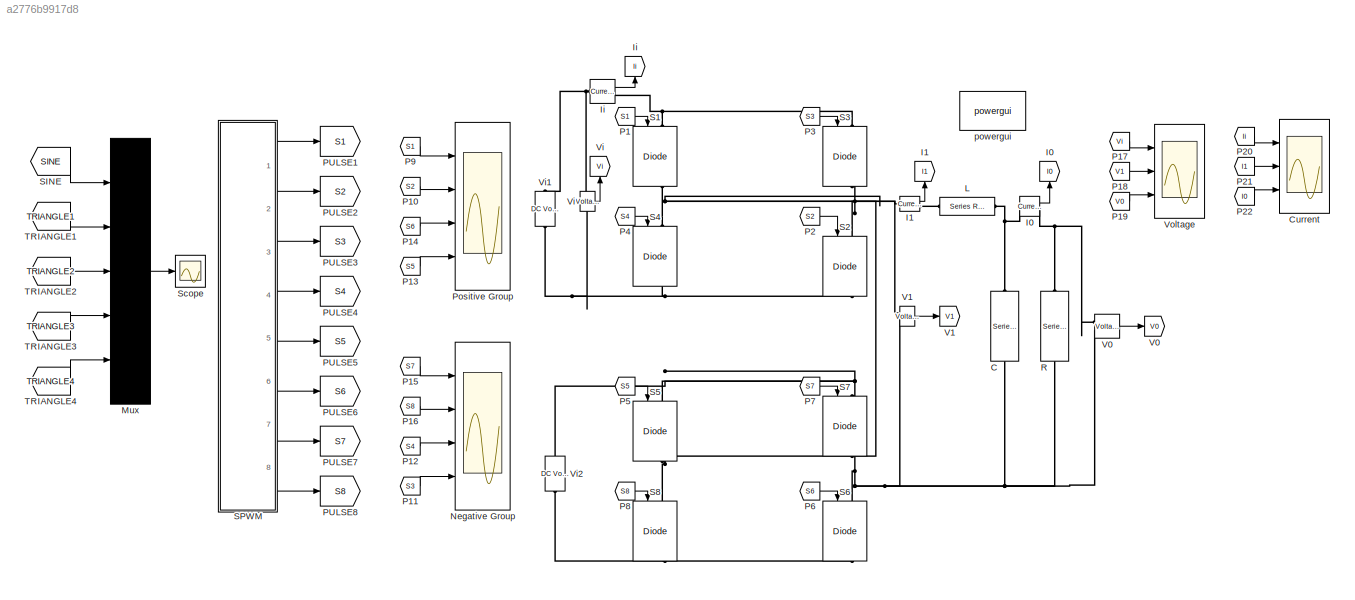
MODEL slx_a2776b9917d8
KIND model
BLOCK [Reference] C  REF=powerlib/Elements/Series RLC Branch
  BranchType = C
  Capacitance = 5.5e-6
  Inductance = 5e-3
  InitialCurrent = 0
  InitialVoltage = 0
  LConnTagsString = __new0
  Measurements = None
  Ports = [0, 0, 0, 0, 0, 1, 1]
  RConnTagsString = __new0
  Resistance = 20
  SetiL0 = off
  Setx0 = off
  SourceBlock = powerlib/Elements/Series RLC Branch
  SourceType = Series RLC Branch
BLOCK [Scope] Current
  DataFormat = StructureWithTime
  Floating = off
  LimitDataPoints = off
  NumInputPorts = 3
  Ports = [3]
  SaveName = current
  SaveToWorkspace = on
  ShowLegends = off
  TimeRange = 0.1
  YMax = 4~4~4
  YMin = -4~-4~-4
  ZoomMode = xonly
BLOCK [Reference] I0  REF=powerlib/Measurements/Current Measurement
  OutputType = Complex
  PSBequivalent = 0
  PhasorSimulation = off
  Ports = [0, 1, 0, 0, 0, 1, 1]
  SourceBlock = powerlib/Measurements/Current Measurement
  SourceType = Current Measurement
  UserDataPersistent = on
BLOCK [Goto] I0 
  GotoTag = I0
  TagVisibility = global
BLOCK [Reference] I1  REF=powerlib/Measurements/Current Measurement
  OutputType = Complex
  PSBequivalent = 0
  PhasorSimulation = off
  Ports = [0, 1, 0, 0, 0, 1, 1]
  SourceBlock = powerlib/Measurements/Current Measurement
  SourceType = Current Measurement
  UserDataPersistent = on
BLOCK [Goto] I1 
  GotoTag = I1
  TagVisibility = global
BLOCK [Reference] Ii  REF=powerlib/Measurements/Current Measurement
  OutputType = Complex
  PSBequivalent = 0
  PhasorSimulation = off
  Ports = [0, 1, 0, 0, 0, 1, 1]
  SourceBlock = powerlib/Measurements/Current Measurement
  SourceType = Current Measurement
  UserDataPersistent = on
BLOCK [Goto] Ii 
  GotoTag = Ii
  TagVisibility = global
BLOCK [Reference] L  REF=powerlib/Elements/Series RLC Branch
  BranchType = L
  Capacitance = 1e-6
  Inductance = 35e-3
  InitialCurrent = 0
  InitialVoltage = 0
  LConnTagsString = __new0
  Measurements = None
  Ports = [0, 0, 0, 0, 0, 1, 1]
  RConnTagsString = __new0
  Resistance = 20
  SetiL0 = off
  Setx0 = off
  SourceBlock = powerlib/Elements/Series RLC Branch
  SourceType = Series RLC Branch
BLOCK [Mux] Mux
  DisplayOption = bar
  Inputs = 5
  Ports = [5, 1]
BLOCK [Scope] Negative Group
  DataFormat = StructureWithTime
  Floating = off
  LimitDataPoints = off
  NumInputPorts = 4
  Ports = [4]
  SaveName = negative
  SaveToWorkspace = on
  ShowLegends = off
  YMax = 5~5~5~5
  YMin = -5~-5~-5~-5
  ZoomMode = xonly
BLOCK [From] P1
  GotoTag = S1
  TagVisibility = global
BLOCK [From] P10
  GotoTag = S2
  TagVisibility = global
BLOCK [From] P11
  GotoTag = S3
  TagVisibility = global
BLOCK [From] P12
  GotoTag = S4
  TagVisibility = global
BLOCK [From] P13
  GotoTag = S5
  TagVisibility = global
BLOCK [From] P14
  GotoTag = S6
  TagVisibility = global
BLOCK [From] P15
  GotoTag = S7
  TagVisibility = global
BLOCK [From] P16
  GotoTag = S8
  TagVisibility = global
BLOCK [From] P17
  GotoTag = Vi
  TagVisibility = global
BLOCK [From] P18
  GotoTag = V1
  TagVisibility = global
BLOCK [From] P19
  GotoTag = V0
  TagVisibility = global
BLOCK [From] P2
  GotoTag = S2
  TagVisibility = global
BLOCK [From] P20
  GotoTag = Ii
  TagVisibility = global
BLOCK [From] P21
  GotoTag = I1
  TagVisibility = global
BLOCK [From] P22
  GotoTag = I0
  TagVisibility = global
BLOCK [From] P3
  GotoTag = S3
  TagVisibility = global
BLOCK [From] P4
  GotoTag = S4
  TagVisibility = global
BLOCK [From] P5
  GotoTag = S5
  TagVisibility = global
BLOCK [From] P6
  GotoTag = S6
  TagVisibility = global
BLOCK [From] P7
  GotoTag = S7
  TagVisibility = global
BLOCK [From] P8
  GotoTag = S8
  TagVisibility = global
BLOCK [From] P9
  GotoTag = S1
  TagVisibility = global
BLOCK [Goto] PULSE1
  GotoTag = S1
  TagVisibility = global
BLOCK [Goto] PULSE2
  GotoTag = S2
  TagVisibility = global
BLOCK [Goto] PULSE3
  GotoTag = S3
  TagVisibility = global
BLOCK [Goto] PULSE4
  GotoTag = S4
  TagVisibility = global
BLOCK [Goto] PULSE5
  GotoTag = S5
  TagVisibility = global
BLOCK [Goto] PULSE6
  GotoTag = S6
  TagVisibility = global
BLOCK [Goto] PULSE7
  GotoTag = S7
  TagVisibility = global
BLOCK [Goto] PULSE8
  GotoTag = S8
  TagVisibility = global
BLOCK [Scope] Positive Group
  DataFormat = StructureWithTime
  Floating = off
  LimitDataPoints = off
  NumInputPorts = 4
  Ports = [4]
  SaveName = positive
  SaveToWorkspace = on
  ShowLegends = off
  YMax = 5~5~5~5
  YMin = -5~-5~-5~-5
  ZoomMode = xonly
BLOCK [Reference] R  REF=powerlib/Elements/Series RLC Branch
  BranchType = R
  Capacitance = 1e-6
  Inductance = 5e-3
  InitialCurrent = 0
  InitialVoltage = 0
  LConnTagsString = __new0
  Measurements = None
  Ports = [0, 0, 0, 0, 0, 1, 1]
  RConnTagsString = __new0
  Resistance = 80
  SetiL0 = off
  Setx0 = off
  SourceBlock = powerlib/Elements/Series RLC Branch
  SourceType = Series RLC Branch
BLOCK [Reference] S1  REF=powerlib/Power
Electronics/IGBT//Diode
  Cs = inf
  Measurements = on
  Ports = [1, 1, 0, 0, 0, 1, 1]
  Ron = 1e-3
  Rs = 1e5
  SourceBlock = powerlib/Power\nElectronics/IGBT//Diode
  SourceType = IGBT/Diode
BLOCK [Reference] S2  REF=powerlib/Power
Electronics/IGBT//Diode
  Cs = inf
  Measurements = on
  Ports = [1, 1, 0, 0, 0, 1, 1]
  Ron = 1e-3
  Rs = 1e5
  SourceBlock = powerlib/Power\nElectronics/IGBT//Diode
  SourceType = IGBT/Diode
BLOCK [Reference] S3  REF=powerlib/Power
Electronics/IGBT//Diode
  Cs = inf
  Measurements = on
  Ports = [1, 1, 0, 0, 0, 1, 1]
  Ron = 1e-3
  Rs = 1e5
  SourceBlock = powerlib/Power\nElectronics/IGBT//Diode
  SourceType = IGBT/Diode
BLOCK [Reference] S4  REF=powerlib/Power
Electronics/IGBT//Diode
  Cs = inf
  Measurements = on
  Ports = [1, 1, 0, 0, 0, 1, 1]
  Ron = 1e-3
  Rs = 1e5
  SourceBlock = powerlib/Power\nElectronics/IGBT//Diode
  SourceType = IGBT/Diode
BLOCK [Reference] S5  REF=powerlib/Power
Electronics/IGBT//Diode
  Cs = inf
  Measurements = on
  Ports = [1, 1, 0, 0, 0, 1, 1]
  Ron = 1e-3
  Rs = 1e5
  SourceBlock = powerlib/Power\nElectronics/IGBT//Diode
  SourceType = IGBT/Diode
BLOCK [Reference] S6  REF=powerlib/Power
Electronics/IGBT//Diode
  Cs = inf
  Measurements = on
  Ports = [1, 1, 0, 0, 0, 1, 1]
  Ron = 1e-3
  Rs = 1e5
  SourceBlock = powerlib/Power\nElectronics/IGBT//Diode
  SourceType = IGBT/Diode
BLOCK [Reference] S7  REF=powerlib/Power
Electronics/IGBT//Diode
  Cs = inf
  Measurements = on
  Ports = [1, 1, 0, 0, 0, 1, 1]
  Ron = 1e-3
  Rs = 1e5
  SourceBlock = powerlib/Power\nElectronics/IGBT//Diode
  SourceType = IGBT/Diode
BLOCK [Reference] S8  REF=powerlib/Power
Electronics/IGBT//Diode
  Cs = inf
  Measurements = on
  Ports = [1, 1, 0, 0, 0, 1, 1]
  Ron = 1e-3
  Rs = 1e5
  SourceBlock = powerlib/Power\nElectronics/IGBT//Diode
  SourceType = IGBT/Diode
BLOCK [From] SINE
  GotoTag = SINE
  TagVisibility = global
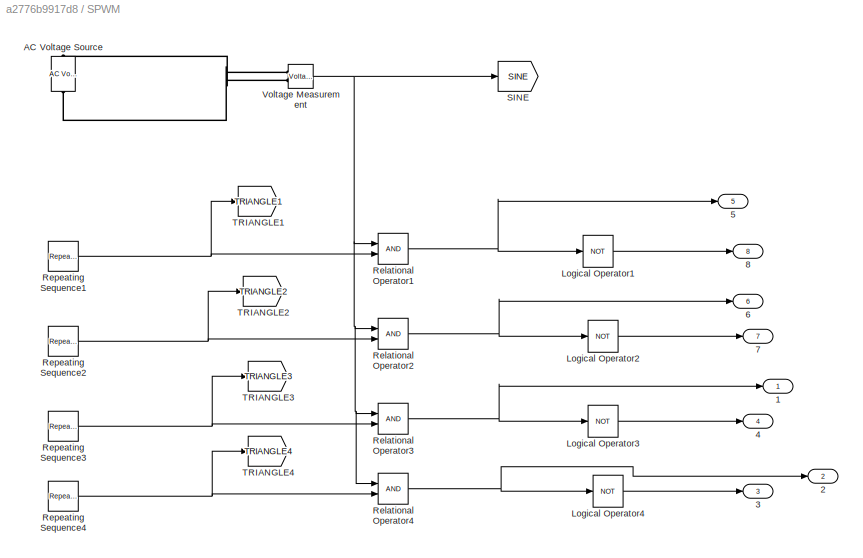
BLOCK [SubSystem] SPWM
  Ports = [0, 8]
  RequestExecContextInheritance = off
BLOCK [Outport] SPWM/1
  IconDisplay = Port number
BLOCK [Outport] SPWM/2
  IconDisplay = Port number
  Port = 2
BLOCK [Outport] SPWM/3
  IconDisplay = Port number
  Port = 3
BLOCK [Outport] SPWM/4
  IconDisplay = Port number
  Port = 4
BLOCK [Outport] SPWM/5
  IconDisplay = Port number
  Port = 5
BLOCK [Outport] SPWM/6
  IconDisplay = Port number
  Port = 6
BLOCK [Outport] SPWM/7
  IconDisplay = Port number
  Port = 7
BLOCK [Outport] SPWM/8
  IconDisplay = Port number
  Port = 8
BLOCK [Reference] SPWM/AC Voltage Source  REF=powerlib/Electrical
Sources/AC Voltage Source
  Amplitude = 1.6
  Frequency = 50
  Measurements = None
  Phase = 0
  Ports = [0, 0, 0, 0, 0, 1, 1]
  SampleTime = 0
  SourceBlock = powerlib/Electrical\nSources/AC Voltage Source
  SourceType = AC Voltage Source
BLOCK [Logic] SPWM/Logical Operator1
  AllPortsSameDT = off
  Operator = NOT
  OutDataTypeStr = boolean
  Ports = [1, 1]
BLOCK [Logic] SPWM/Logical Operator2
  AllPortsSameDT = off
  Operator = NOT
  OutDataTypeStr = boolean
  Ports = [1, 1]
BLOCK [Logic] SPWM/Logical Operator3
  AllPortsSameDT = off
  Operator = NOT
  OutDataTypeStr = boolean
  Ports = [1, 1]
BLOCK [Logic] SPWM/Logical Operator4
  AllPortsSameDT = off
  Operator = NOT
  OutDataTypeStr = boolean
  Ports = [1, 1]
BLOCK [RelationalOperator] SPWM/Relational Operator1
  InputSameDT = off
  OutDataTypeStr = boolean
  Ports = [2, 1]
BLOCK [RelationalOperator] SPWM/Relational Operator2
  InputSameDT = off
  OutDataTypeStr = boolean
  Ports = [2, 1]
BLOCK [RelationalOperator] SPWM/Relational Operator3
  InputSameDT = off
  OutDataTypeStr = boolean
  Ports = [2, 1]
BLOCK [RelationalOperator] SPWM/Relational Operator4
  InputSameDT = off
  OutDataTypeStr = boolean
  Ports = [2, 1]
BLOCK [Reference] SPWM/Repeating Sequence1  REF=simulink/Sources/Repeating
Sequence
  Ports = [0, 1]
  SourceBlock = simulink/Sources/Repeating\nSequence
  SourceType = Repeating table
  rep_seq_t = [0 0.5 1]/2500
  rep_seq_y = [1 2 1]
BLOCK [Reference] SPWM/Repeating Sequence2  REF=simulink/Sources/Repeating
Sequence
  Ports = [0, 1]
  SourceBlock = simulink/Sources/Repeating\nSequence
  SourceType = Repeating table
  rep_seq_t = [0 0.5 1]/2500
  rep_seq_y = [0 1 0]
BLOCK [Reference] SPWM/Repeating Sequence3  REF=simulink/Sources/Repeating
Sequence
  Ports = [0, 1]
  SourceBlock = simulink/Sources/Repeating\nSequence
  SourceType = Repeating table
  rep_seq_t = [0 0.5 1]/2500
  rep_seq_y = [-1 0 -1]
BLOCK [Reference] SPWM/Repeating Sequence4  REF=simulink/Sources/Repeating
Sequence
  Ports = [0, 1]
  SourceBlock = simulink/Sources/Repeating\nSequence
  SourceType = Repeating table
  rep_seq_t = [0 0.5 1]/2500
  rep_seq_y = [-2 -1 -2]
BLOCK [Goto] SPWM/SINE
  GotoTag = SINE
  TagVisibility = global
BLOCK [Goto] SPWM/TRIANGLE1
  GotoTag = TRIANGLE1
  TagVisibility = global
BLOCK [Goto] SPWM/TRIANGLE2
  GotoTag = TRIANGLE2
  TagVisibility = global
BLOCK [Goto] SPWM/TRIANGLE3
  GotoTag = TRIANGLE3
  TagVisibility = global
BLOCK [Goto] SPWM/TRIANGLE4
  GotoTag = TRIANGLE4
  TagVisibility = global
BLOCK [Reference] SPWM/Voltage Measurement  REF=powerlib/Measurements/Voltage Measurement
  OutputType = Complex
  PSBequivalent = 0
  PhasorSimulation = off
  Ports = [0, 1, 0, 0, 0, 2]
  SourceBlock = powerlib/Measurements/Voltage Measurement
  SourceType = Voltage Measurement
  UserDataPersistent = on
BLOCK [Scope] Scope
  DataFormat = StructureWithTime
  Floating = off
  LimitDataPoints = off
  NumInputPorts = 1
  Ports = [1]
  SaveName = sine
  SaveToWorkspace = on
  ShowLegends = off
  ZoomMode = xonly
BLOCK [From] TRIANGLE1
  GotoTag = TRIANGLE1
  TagVisibility = global
BLOCK [From] TRIANGLE2
  GotoTag = TRIANGLE2
  TagVisibility = global
BLOCK [From] TRIANGLE3
  GotoTag = TRIANGLE3
  TagVisibility = global
BLOCK [From] TRIANGLE4
  GotoTag = TRIANGLE4
  TagVisibility = global
BLOCK [Reference] V0  REF=powerlib/Measurements/Voltage Measurement
  OutputType = Complex
  PSBequivalent = 0
  PhasorSimulation = off
  Ports = [0, 1, 0, 0, 0, 2]
  SourceBlock = powerlib/Measurements/Voltage Measurement
  SourceType = Voltage Measurement
  UserDataPersistent = on
BLOCK [Goto] V0 
  GotoTag = V0
  TagVisibility = global
BLOCK [Goto] V1 
  GotoTag = V1
  TagVisibility = global
BLOCK [Reference] V1    REF=powerlib/Measurements/Voltage Measurement
  OutputType = Complex
  PSBequivalent = 0
  PhasorSimulation = off
  Ports = [0, 1, 0, 0, 0, 2]
  SourceBlock = powerlib/Measurements/Voltage Measurement
  SourceType = Voltage Measurement
  UserDataPersistent = on
BLOCK [Reference] Vi  REF=powerlib/Measurements/Voltage Measurement
  OutputType = Complex
  PSBequivalent = 0
  PhasorSimulation = off
  Ports = [0, 1, 0, 0, 0, 2]
  SourceBlock = powerlib/Measurements/Voltage Measurement
  SourceType = Voltage Measurement
  UserDataPersistent = on
BLOCK [Goto] Vi 
  GotoTag = Vi
  TagVisibility = global
BLOCK [Reference] Vi1  REF=powerlib/Electrical
Sources/DC Voltage Source
  Amplitude = 115
  Measurements = None
  Ports = [0, 0, 0, 0, 0, 1, 1]
  SourceBlock = powerlib/Electrical\nSources/DC Voltage Source
  SourceType = DC Voltage Source
BLOCK [Reference] Vi2  REF=powerlib/Electrical
Sources/DC Voltage Source
  Amplitude = 115
  Measurements = None
  Ports = [0, 0, 0, 0, 0, 1, 1]
  SourceBlock = powerlib/Electrical\nSources/DC Voltage Source
  SourceType = DC Voltage Source
BLOCK [Scope] Voltage
  DataFormat = StructureWithTime
  Floating = off
  LimitDataPoints = off
  NumInputPorts = 3
  Ports = [3]
  SaveName = voltage
  SaveToWorkspace = on
  ShowLegends = off
  TimeRange = 0.1
  YMax = 111~300~200
  YMin = 109~-300~-200
  ZoomMode = xonly
BLOCK [Reference] powergui  REF=powerlib/powergui
  DisableRonSwitches = off
  DisableSnubberDevices = off
  DisableVfSwitches = off
  DisplayEquations = off
  DisplayStyle = 1
  EnableUseOfTLC = off
  ErrMax = 1e-4
  Frange = [0:2:500]
  FreqAxis = off
  FunctionMessages = off
  HookPort = off
  Interpol = off
  Iterations = 50
  MaxFrequency = 1000
  Pbase = 100e6
  Ports = []
  Priority = 1
  ResistiveCurrentMeasurement = off
  RestoreLinks = warning
  RmsSteady = 1
  SPID = off
  SampleTime = 50e-6
  ShowGrid = off
  SolverType = Tustin
  SourceBlock = powerlib/powergui
  SourceType = PSB option menu block
  StartTime = 0.02
  SwTol = 0
  Ts = 0
  UnitsV = kV
  UnitsW = MW
  UserDataPersistent = on
  Xlog = on
  Ylog = off
  ZoomFFT = off
  cycles = 1
  display = off
  echomessages = off
  frequency = 60
  frequencyindice = 0
  frequencyindicesteady = 1
  fundamental = 50
  methode = off
  save = off
  structure = voltage
  variable = ZData
  x0status = blocks
LINE I0:1 -> I0 :1
LINE I1:1 -> I1 :1
LINE Ii:1 -> Ii :1
LINE Mux:1 -> Scope:1
LINE P10:1 -> Positive Group:2
LINE P11:1 -> Negative Group:4
LINE P12:1 -> Negative Group:3
LINE P13:1 -> Positive Group:4
LINE P14:1 -> Positive Group:3
LINE P15:1 -> Negative Group:1
LINE P16:1 -> Negative Group:2
LINE P17:1 -> Voltage:1
LINE P18:1 -> Voltage:2
LINE P19:1 -> Voltage:3
LINE P1:1 -> S1:1
LINE P20:1 -> Current:1
LINE P21:1 -> Current:2
LINE P22:1 -> Current:3
LINE P2:1 -> S2:1
LINE P3:1 -> S3:1
LINE P4:1 -> S4:1
LINE P5:1 -> S5:1
LINE P6:1 -> S6:1
LINE P7:1 -> S7:1
LINE P8:1 -> S8:1
LINE P9:1 -> Positive Group:1
LINE SINE:1 -> Mux:1
LINE SPWM/Logical Operator1:1 -> SPWM/8:1
LINE SPWM/Logical Operator2:1 -> SPWM/7:1
LINE SPWM/Logical Operator3:1 -> SPWM/4:1
LINE SPWM/Logical Operator4:1 -> SPWM/3:1
NET SPWM/Relational Operator1:1 -> SPWM/5:1, SPWM/Logical Operator1:1
NET SPWM/Relational Operator2:1 -> SPWM/6:1, SPWM/Logical Operator2:1
NET SPWM/Relational Operator3:1 -> SPWM/1:1, SPWM/Logical Operator3:1
NET SPWM/Relational Operator4:1 -> SPWM/2:1, SPWM/Logical Operator4:1
NET SPWM/Repeating Sequence1:1 -> SPWM/Relational Operator1:2, SPWM/TRIANGLE1:1
NET SPWM/Repeating Sequence2:1 -> SPWM/Relational Operator2:2, SPWM/TRIANGLE2:1
NET SPWM/Repeating Sequence3:1 -> SPWM/Relational Operator3:2, SPWM/TRIANGLE3:1
NET SPWM/Repeating Sequence4:1 -> SPWM/Relational Operator4:2, SPWM/TRIANGLE4:1
NET SPWM/Voltage Measurement:1 -> SPWM/Relational Operator1:1, SPWM/Relational Operator2:1, SPWM/Relational Operator3:1, SPWM/Relational Operator4:1, SPWM/SINE:1
LINE SPWM:1 -> PULSE1:1
LINE SPWM:2 -> PULSE2:1
LINE SPWM:3 -> PULSE3:1
LINE SPWM:4 -> PULSE4:1
LINE SPWM:5 -> PULSE5:1
LINE SPWM:6 -> PULSE6:1
LINE SPWM:7 -> PULSE7:1
LINE SPWM:8 -> PULSE8:1
LINE TRIANGLE1:1 -> Mux:2
LINE TRIANGLE2:1 -> Mux:3
LINE TRIANGLE3:1 -> Mux:4
LINE TRIANGLE4:1 -> Mux:5
LINE V0:1 -> V0 :1
LINE V1  :1 -> V1 :1
LINE Vi:1 -> Vi :1
PNET net1: C:LConn1 -- I0:LConn1 -- L:LConn1
PNET net2: C:RConn1 -- R:RConn1 -- S6:LConn1 -- S7:RConn1 -- V0:LConn2 -- V1  :LConn2
PNET net3: I0:RConn1 -- R:LConn1 -- V0:LConn1
PNET net4: I1:LConn1 -- S1:RConn1 -- S4:LConn1 -- V1  :LConn1
PLINE I1:RConn1 -- L:RConn1
PNET net5: Ii:LConn1 -- Vi1:RConn1 -- Vi:LConn1
PNET net6: Ii:RConn1 -- S1:LConn1 -- S3:LConn1
PNET net7: S2:LConn1 -- S3:RConn1 -- S5:RConn1 -- S8:LConn1
PNET net8: S2:RConn1 -- S4:RConn1 -- Vi1:LConn1 -- Vi:LConn2
PNET net9: S5:LConn1 -- S7:LConn1 -- Vi2:RConn1
PNET net10: S6:RConn1 -- S8:RConn1 -- Vi2:LConn1
PLINE SPWM/AC Voltage Source:LConn1 -- SPWM/Voltage Measurement:LConn2
PLINE SPWM/AC Voltage Source:RConn1 -- SPWM/Voltage Measurement:LConn1
note: NET lines group one-source signal fan-out (src -> all destinations, sorted); 1:1 wires keep LINE; PNET lines group multi-terminal physical nets as a canonical sorted terminal list (undirected conserving connections); 2-terminal nets keep the pairwise PLINE form
